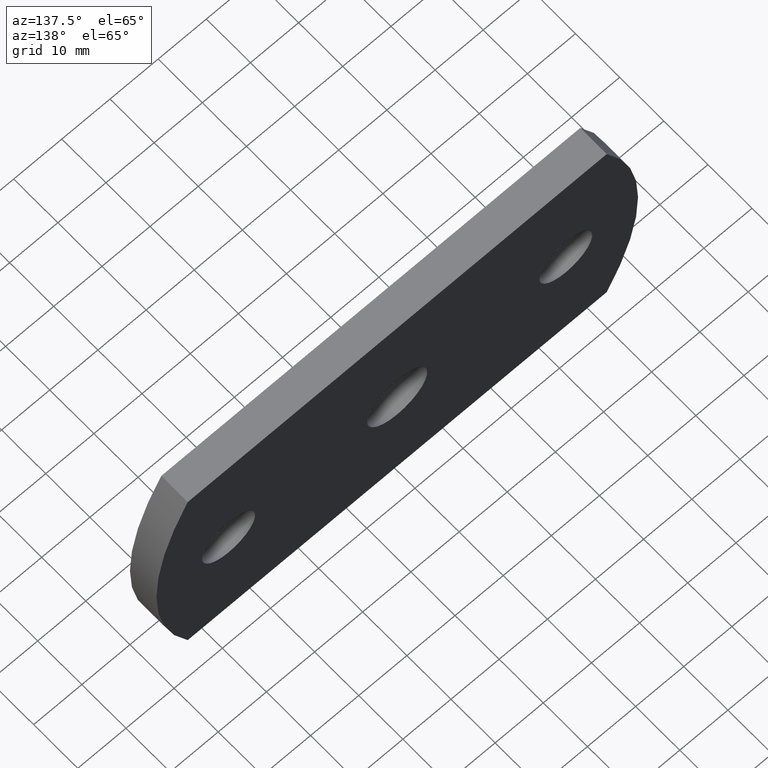
[diagram: clean part render]
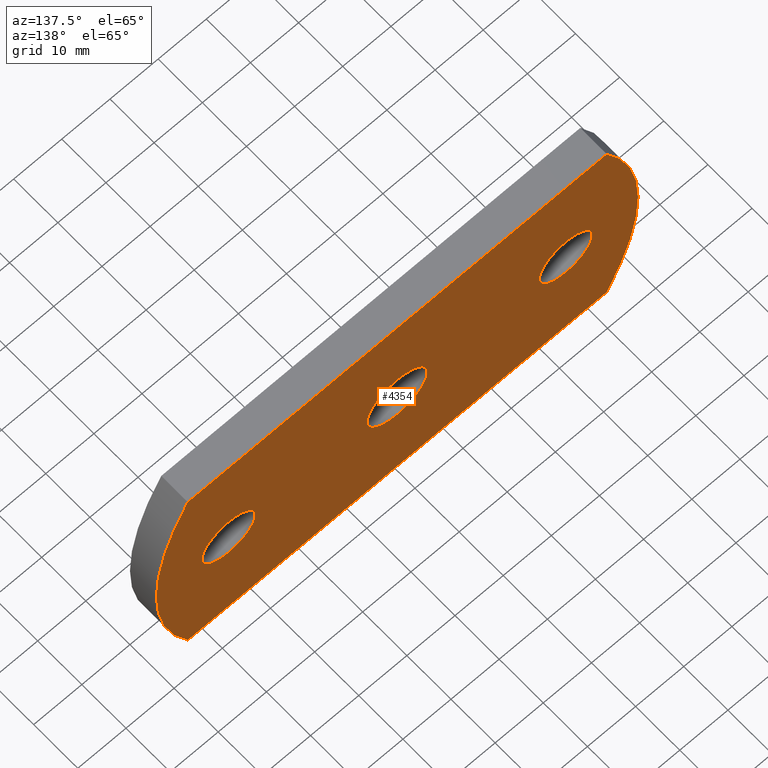
[diagram: same view with one face highlighted and labeled with its STEP entity id]
A machine part, auxiliary view. The second image highlights one B-rep face of the part: STEP entity #4354.
In plain terms, the highlighted planar face has unit normal (0, -1, 0).
Its self-contained STEP definition (entity closure, byte-faithful):
#17 = LINE ( 'NONE', #5384, #8281 ) ;
#48 = DIRECTION ( 'NONE',  ( 1.000000000000000000, 0.0000000000000000000, 0.0000000000000000000 ) ) ;
#256 = CIRCLE ( 'NONE', #2754, 6.250000000000000000 ) ;
#286 = EDGE_CURVE ( 'NONE', #6192, #7362, #1773, .T. ) ;
#342 = CARTESIAN_POINT ( 'NONE',  ( 7.654042494670957600E-016, 6.000000000000000000, -6.250000000000000000 ) ) ;
#429 = CARTESIAN_POINT ( 'NONE',  ( -35.00000000000000000, 6.000000000000000000, -5.499999999999996400 ) ) ;
#761 = AXIS2_PLACEMENT_3D ( 'NONE', #3382, #5883, #2756 ) ;
#920 = AXIS2_PLACEMENT_3D ( 'NONE', #3660, #7626, #7576 ) ;
#1020 = DIRECTION ( 'NONE',  ( 0.0000000000000000000, -1.000000000000000000, 0.0000000000000000000 ) ) ;
#1079 = ORIENTED_EDGE ( 'NONE', *, *, #5282, .F. ) ;
#1148 = CARTESIAN_POINT ( 'NONE',  ( 35.00000000000000000, 6.000000000000000000, -5.499999999999996400 ) ) ;
#1272 = AXIS2_PLACEMENT_3D ( 'NONE', #5341, #4030, #3395 ) ;
#1289 = VERTEX_POINT ( 'NONE', #4375 ) ;
#1535 = CIRCLE ( 'NONE', #7936, 6.250000000000000000 ) ;
#1561 = EDGE_CURVE ( 'NONE', #7362, #4753, #7268, .T. ) ;
#1681 = ORIENTED_EDGE ( 'NONE', *, *, #1561, .T. ) ;
#1708 = PLANE ( 'NONE',  #4315 ) ;
#1773 = LINE ( 'NONE', #7866, #3332 ) ;
#1900 = CIRCLE ( 'NONE', #1272, 51.32692307692285300 ) ;
#1901 = ORIENTED_EDGE ( 'NONE', *, *, #4448, .F. ) ;
#1949 = EDGE_LOOP ( 'NONE', ( #2163, #1901 ) ) ;
#1967 = VERTEX_POINT ( 'NONE', #3461 ) ;
#2071 = VERTEX_POINT ( 'NONE', #1148 ) ;
#2163 = ORIENTED_EDGE ( 'NONE', *, *, #6226, .F. ) ;
#2207 = AXIS2_PLACEMENT_3D ( 'NONE', #8133, #2278, #3573 ) ;
#2261 = EDGE_CURVE ( 'NONE', #3364, #6192, #1900, .T. ) ;
#2278 = DIRECTION ( 'NONE',  ( 0.0000000000000000000, 1.000000000000000000, 0.0000000000000000000 ) ) ;
#2385 = CIRCLE ( 'NONE', #920, 5.499999999999996400 ) ;
#2525 = DIRECTION ( 'NONE',  ( 0.0000000000000000000, 0.0000000000000000000, 1.000000000000000000 ) ) ;
#2538 = ORIENTED_EDGE ( 'NONE', *, *, #5875, .F. ) ;
#2754 = AXIS2_PLACEMENT_3D ( 'NONE', #7698, #5756, #2525 ) ;
#2756 = DIRECTION ( 'NONE',  ( 0.0000000000000000000, 0.0000000000000000000, 1.000000000000000000 ) ) ;
#2830 = FACE_BOUND ( 'NONE', #1949, .T. ) ;
#3167 = AXIS2_PLACEMENT_3D ( 'NONE', #3609, #4218, #6131 ) ;
#3332 = VECTOR ( 'NONE', #48, 1000.000000000000000 ) ;
#3364 = VERTEX_POINT ( 'NONE', #5339 ) ;
#3382 = CARTESIAN_POINT ( 'NONE',  ( 35.00000000000000000, 6.000000000000000000, 0.0000000000000000000 ) ) ;
#3395 = DIRECTION ( 'NONE',  ( 0.0000000000000000000, 0.0000000000000000000, 1.000000000000000000 ) ) ;
#3456 = VERTEX_POINT ( 'NONE', #8458 ) ;
#3461 = CARTESIAN_POINT ( 'NONE',  ( 35.00000000000000000, 6.000000000000000000, 5.499999999999996400 ) ) ;
#3462 = DIRECTION ( 'NONE',  ( -1.000000000000000000, -0.0000000000000000000, -0.0000000000000000000 ) ) ;
#3465 = EDGE_CURVE ( 'NONE', #4026, #3456, #4123, .T. ) ;
#3474 = ORIENTED_EDGE ( 'NONE', *, *, #286, .T. ) ;
#3573 = DIRECTION ( 'NONE',  ( 0.0000000000000000000, 0.0000000000000000000, 1.000000000000000000 ) ) ;
#3609 = CARTESIAN_POINT ( 'NONE',  ( -1.326923076923225400, 6.000000000000000000, 0.0000000000000000000 ) ) ;
#3660 = CARTESIAN_POINT ( 'NONE',  ( 35.00000000000000000, 6.000000000000000000, 0.0000000000000000000 ) ) ;
#3859 = DIRECTION ( 'NONE',  ( 0.0000000000000000000, 0.0000000000000000000, 1.000000000000000000 ) ) ;
#3883 = CARTESIAN_POINT ( 'NONE',  ( 0.0000000000000000000, 6.000000000000000000, 0.0000000000000000000 ) ) ;
#4026 = VERTEX_POINT ( 'NONE', #429 ) ;
#4030 = DIRECTION ( 'NONE',  ( 0.0000000000000000000, 1.000000000000000000, 0.0000000000000000000 ) ) ;
#4123 = CIRCLE ( 'NONE', #5487, 5.499999999999996400 ) ;
#4218 = DIRECTION ( 'NONE',  ( 0.0000000000000000000, 1.000000000000000000, -0.0000000000000000000 ) ) ;
#4228 = FACE_BOUND ( 'NONE', #5458, .T. ) ;
#4288 = EDGE_LOOP ( 'NONE', ( #1681, #5585, #6823, #3474 ) ) ;
#4315 = AXIS2_PLACEMENT_3D ( 'NONE', #6711, #1020, #7410 ) ;
#4354 = ADVANCED_FACE ( 'NONE', ( #4228, #8122, #2830, #4633 ), #1708, .F. ) ;
#4375 = CARTESIAN_POINT ( 'NONE',  ( 0.0000000000000000000, 6.000000000000000000, 6.250000000000000000 ) ) ;
#4448 = EDGE_CURVE ( 'NONE', #7858, #1289, #256, .T. ) ;
#4503 = CARTESIAN_POINT ( 'NONE',  ( -35.00000000000000000, 6.000000000000000000, 0.0000000000000000000 ) ) ;
#4633 = FACE_OUTER_BOUND ( 'NONE', #4288, .T. ) ;
#4748 = ORIENTED_EDGE ( 'NONE', *, *, #3465, .F. ) ;
#4753 = VERTEX_POINT ( 'NONE', #8117 ) ;
#5028 = CIRCLE ( 'NONE', #761, 5.499999999999996400 ) ;
#5137 = DIRECTION ( 'NONE',  ( 0.0000000000000000000, 1.000000000000000000, 0.0000000000000000000 ) ) ;
#5282 = EDGE_CURVE ( 'NONE', #1967, #2071, #2385, .T. ) ;
#5339 = CARTESIAN_POINT ( 'NONE',  ( -43.49999999999995000, 6.000000000000000000, -25.00000000000003900 ) ) ;
#5341 = CARTESIAN_POINT ( 'NONE',  ( 1.326923076922850600, 6.000000000000000000, 0.0000000000000000000 ) ) ;
#5384 = CARTESIAN_POINT ( 'NONE',  ( -43.49999999999997200, 6.000000000000000000, -25.00000000000000000 ) ) ;
#5458 = EDGE_LOOP ( 'NONE', ( #1079, #2538 ) ) ;
#5487 = AXIS2_PLACEMENT_3D ( 'NONE', #4503, #6449, #3859 ) ;
#5585 = ORIENTED_EDGE ( 'NONE', *, *, #6677, .T. ) ;
#5680 = CARTESIAN_POINT ( 'NONE',  ( 43.50000000000002100, 6.000000000000000000, 25.00000000000000000 ) ) ;
#5756 = DIRECTION ( 'NONE',  ( 0.0000000000000000000, 1.000000000000000000, 0.0000000000000000000 ) ) ;
#5875 = EDGE_CURVE ( 'NONE', #2071, #1967, #5028, .T. ) ;
#5883 = DIRECTION ( 'NONE',  ( 0.0000000000000000000, 1.000000000000000000, 0.0000000000000000000 ) ) ;
#6053 = EDGE_LOOP ( 'NONE', ( #6482, #4748 ) ) ;
#6131 = DIRECTION ( 'NONE',  ( 0.0000000000000000000, 0.0000000000000000000, -1.000000000000000000 ) ) ;
#6192 = VERTEX_POINT ( 'NONE', #8363 ) ;
#6226 = EDGE_CURVE ( 'NONE', #1289, #7858, #1535, .T. ) ;
#6449 = DIRECTION ( 'NONE',  ( 0.0000000000000000000, 1.000000000000000000, 0.0000000000000000000 ) ) ;
#6472 = DIRECTION ( 'NONE',  ( 0.0000000000000000000, 0.0000000000000000000, 1.000000000000000000 ) ) ;
#6482 = ORIENTED_EDGE ( 'NONE', *, *, #8389, .F. ) ;
#6520 = CIRCLE ( 'NONE', #2207, 5.499999999999996400 ) ;
#6677 = EDGE_CURVE ( 'NONE', #4753, #3364, #17, .T. ) ;
#6711 = CARTESIAN_POINT ( 'NONE',  ( -1.326923076923225400, 6.000000000000000000, 0.0000000000000000000 ) ) ;
#6823 = ORIENTED_EDGE ( 'NONE', *, *, #2261, .T. ) ;
#7268 = CIRCLE ( 'NONE', #3167, 51.32692307692322900 ) ;
#7362 = VERTEX_POINT ( 'NONE', #5680 ) ;
#7410 = DIRECTION ( 'NONE',  ( 0.0000000000000000000, -0.0000000000000000000, -1.000000000000000000 ) ) ;
#7576 = DIRECTION ( 'NONE',  ( 0.0000000000000000000, 0.0000000000000000000, 1.000000000000000000 ) ) ;
#7626 = DIRECTION ( 'NONE',  ( 0.0000000000000000000, 1.000000000000000000, 0.0000000000000000000 ) ) ;
#7698 = CARTESIAN_POINT ( 'NONE',  ( 0.0000000000000000000, 6.000000000000000000, 0.0000000000000000000 ) ) ;
#7858 = VERTEX_POINT ( 'NONE', #342 ) ;
#7866 = CARTESIAN_POINT ( 'NONE',  ( -43.49999999999997200, 6.000000000000000000, 25.00000000000000000 ) ) ;
#7936 = AXIS2_PLACEMENT_3D ( 'NONE', #3883, #5137, #6472 ) ;
#8117 = CARTESIAN_POINT ( 'NONE',  ( 43.50000000000002100, 6.000000000000000000, -25.00000000000000000 ) ) ;
#8122 = FACE_BOUND ( 'NONE', #6053, .T. ) ;
#8133 = CARTESIAN_POINT ( 'NONE',  ( -35.00000000000000000, 6.000000000000000000, 0.0000000000000000000 ) ) ;
#8281 = VECTOR ( 'NONE', #3462, 1000.000000000000000 ) ;
#8363 = CARTESIAN_POINT ( 'NONE',  ( -43.49999999999997200, 6.000000000000000000, 25.00000000000000000 ) ) ;
#8389 = EDGE_CURVE ( 'NONE', #3456, #4026, #6520, .T. ) ;
#8458 = CARTESIAN_POINT ( 'NONE',  ( -35.00000000000000000, 6.000000000000000000, 5.499999999999996400 ) ) ;